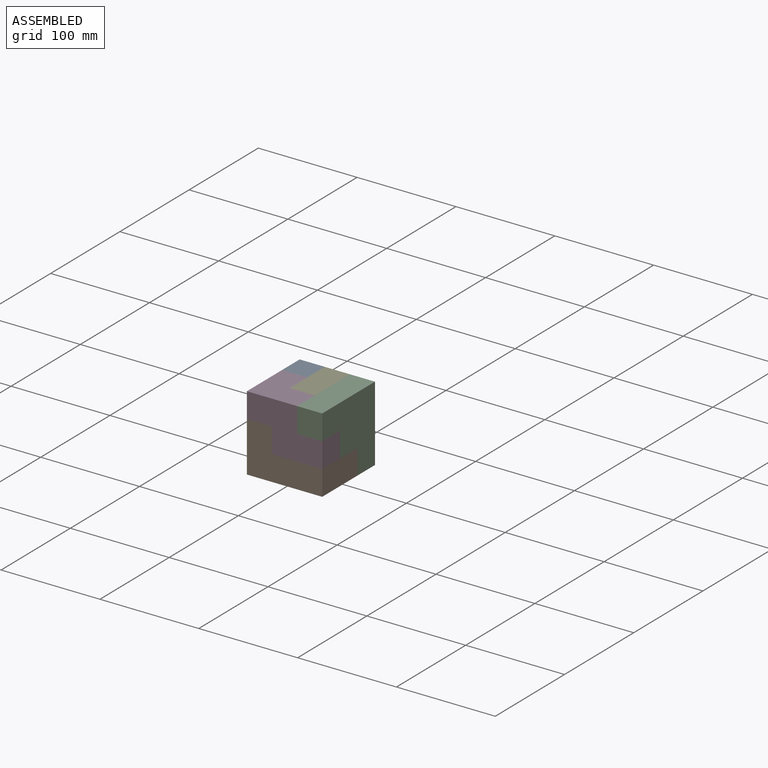
[diagram: assembled view]
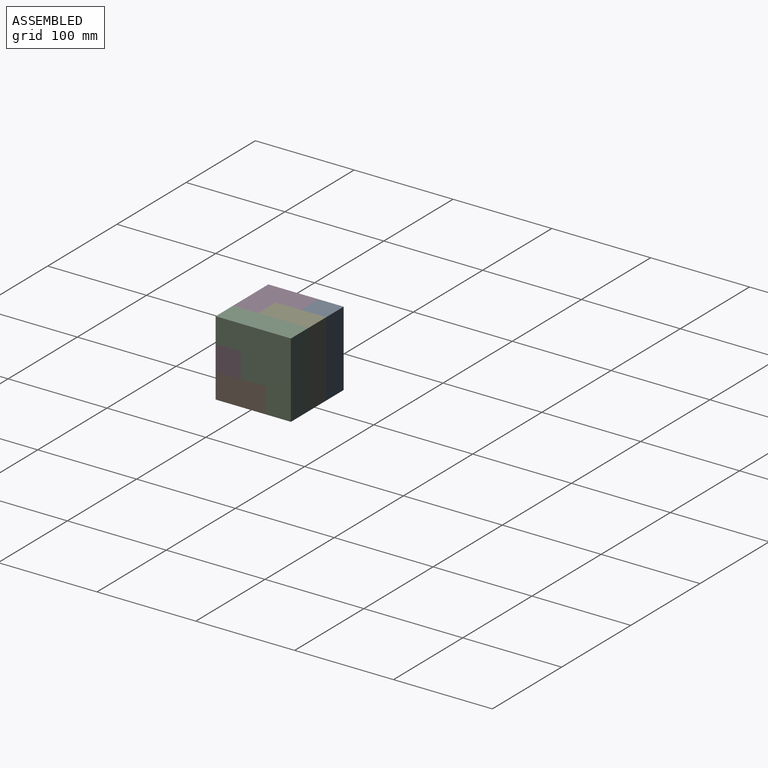
[diagram: assembled view, second angle]
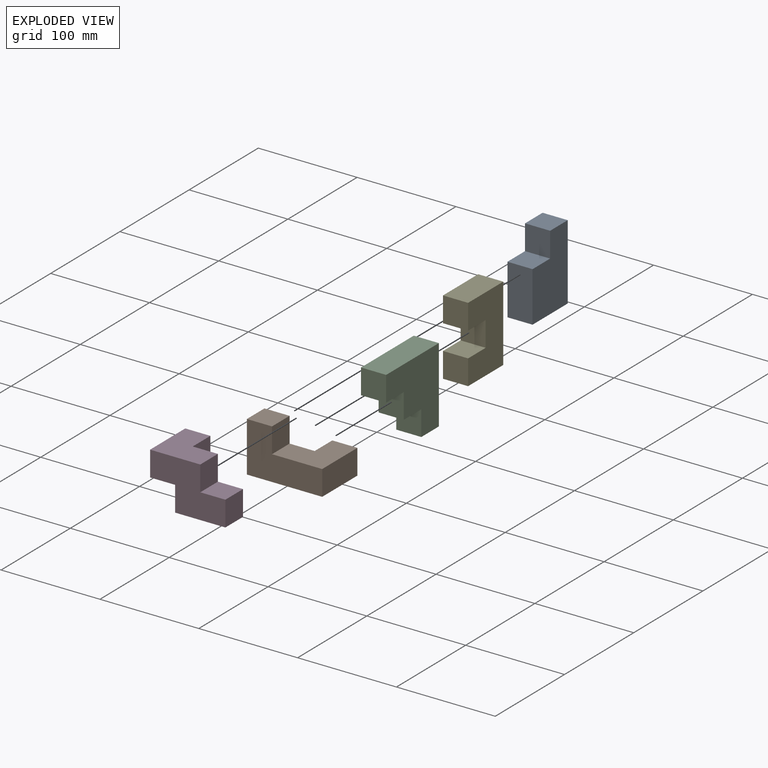
[diagram: exploded view]
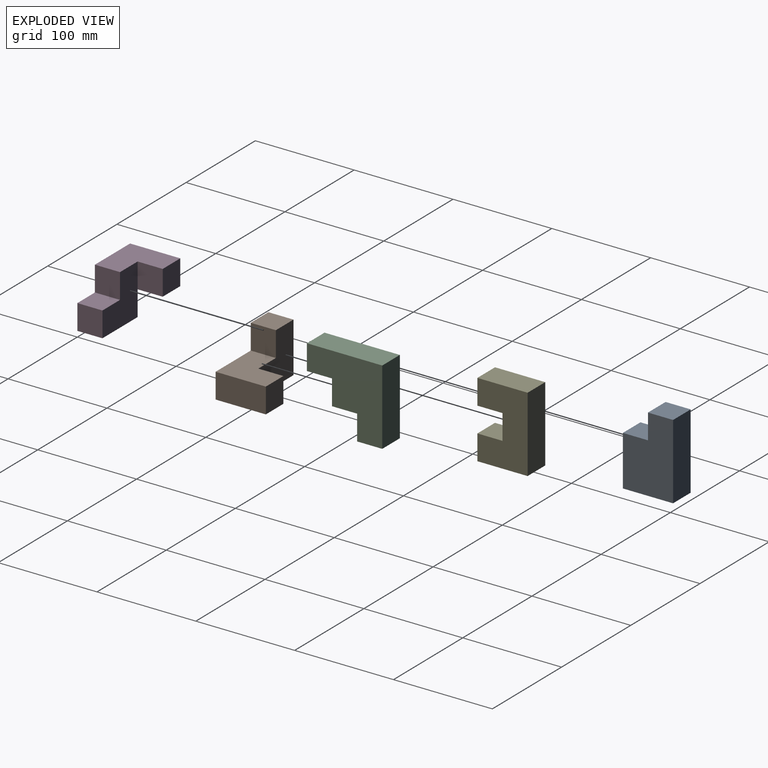
[diagram: exploded view, second angle]
ASSEMBLY  parts=5 mates=15
PART A: 8 faces, bbox 50.8x25.4x76.2 mm
  f0: plane 76.2x25.4mm, normal (-1,0,0), area 1935.5mm2, adj f1,f5,f6,f7
  f1: plane 50.8x25.4mm, normal (0,0,-1), area 1290.3mm2, adj f0,f2,f6,f7
  f2: plane 50.8x25.4mm, normal (1,0,0), area 1290.3mm2, adj f1,f3,f6,f7
  f3: plane 25.4x25.4mm, normal (0,0,1), area 645.2mm2, adj f2,f4,f6,f7
  f4: plane 25.4x25.4mm, normal (1,0,0), area 645.2mm2, adj f3,f5,f6,f7
  f5: plane 25.4x25.4mm, normal (0,0,1), area 645.2mm2, adj f0,f4,f6,f7
  f6: plane 76.2x50.8mm, normal (0,-1,0), area 3225.8mm2, adj f0,f1,f2,f3,f4,f5
  f7: plane 76.2x50.8mm, normal (0,1,0), area 3225.8mm2, adj f0,f1,f2,f3,f4,f5
PART B: 10 faces, bbox 76.2x50.8x50.8 mm
  f0: plane 50.8x25.4mm, normal (-1,0,0), area 1290.3mm2, adj f1,f5,f6,f7
  f1: plane 76.2x50.8mm, normal (0,0,-1), area 2580.6mm2, adj f0,f2,f6,f7,f8,f9
  f2: plane 50.8x25.4mm, normal (1,0,0), area 1290.3mm2, adj f1,f3,f6,f9
  f3: plane 50.8x50.8mm, normal (0,0,1), area 1935.5mm2, adj f2,f4,f6,f7,f8,f9
  f4: plane 25.4x25.4mm, normal (1,0,0), area 645.2mm2, adj f3,f5,f6,f7
  f5: plane 25.4x25.4mm, normal (0,0,1), area 645.2mm2, adj f0,f4,f6,f7
  f6: plane 76.2x50.8mm, normal (0,-1,0), area 2580.6mm2, adj f0,f1,f2,f3,f4,f5
  f7: plane 50.8x50.8mm, normal (0,1,0), area 1935.5mm2, adj f0,f1,f3,f4,f5,f8
  f8: plane 25.4x25.4mm, normal (-1,0,0), area 645.2mm2, adj f1,f3,f7,f9
  f9: plane 25.4x25.4mm, normal (0,1,0), area 645.2mm2, adj f1,f2,f3,f8
PART C: 10 faces, bbox 76.2x25.4x76.2 mm
  f0: plane 25.4x25.4mm, normal (1,0,0), area 645.2mm2, adj f1,f7,f8,f9
  f1: plane 25.4x25.4mm, normal (0,0,-1), area 645.2mm2, adj f0,f2,f8,f9
  f2: plane 25.4x25.4mm, normal (1,0,0), area 645.2mm2, adj f1,f3,f8,f9
  f3: plane 25.4x25.4mm, normal (0,0,-1), area 645.2mm2, adj f2,f4,f8,f9
  f4: plane 25.4x25.4mm, normal (1,0,0), area 645.2mm2, adj f3,f5,f8,f9
  f5: plane 76.2x25.4mm, normal (0,0,1), area 1935.5mm2, adj f4,f6,f8,f9
  f6: plane 76.2x25.4mm, normal (-1,0,0), area 1935.5mm2, adj f5,f7,f8,f9
  f7: plane 25.4x25.4mm, normal (0,0,-1), area 645.2mm2, adj f0,f6,f8,f9
  f8: plane 76.2x76.2mm, normal (0,-1,0), area 3871mm2, adj f0,f1,f2,f3,f4,f5,f6,f7
  f9: plane 76.2x76.2mm, normal (0,1,0), area 3871mm2, adj f0,f1,f2,f3,f4,f5,f6,f7
PART D: 12 faces, bbox 76.2x50.8x50.8 mm
  f0: plane 50.8x50.8mm, normal (0,1,0), area 1935.5mm2, adj f2,f3,f4,f5,f6,f7,f10
  f1: plane 50.8x25.4mm, normal (0,0,-1), area 1290.3mm2, adj f2,f8,f9,f10,f11
  f2: plane 25.4x25.4mm, normal (-1,0,0), area 645.2mm2, adj f0,f1,f3,f9
  f3: plane 50.8x25.4mm, normal (0,0,-1), area 1290.3mm2, adj f0,f2,f4,f9
  f4: plane 25.4x25.4mm, normal (1,0,0), area 645.2mm2, adj f0,f3,f5,f9
  f5: plane 25.4x25.4mm, normal (0,0,1), area 645.2mm2, adj f0,f4,f6,f9
  f6: plane 25.4x25.4mm, normal (1,0,0), area 645.2mm2, adj f0,f5,f7,f9
  f7: plane 50.8x50.8mm, normal (0,0,1), area 1935.5mm2, adj f0,f6,f8,f9,f10,f11
  f8: plane 50.8x25.4mm, normal (-1,0,0), area 1290.3mm2, adj f1,f7,f9,f11
  f9: plane 76.2x50.8mm, normal (0,-1,0), area 2580.6mm2, adj f1,f2,f3,f4,f5,f6,f7,f8
  f10: plane 25.4x25.4mm, normal (1,0,0), area 645.2mm2, adj f0,f1,f7,f11
  f11: plane 25.4x25.4mm, normal (0,1,0), area 645.2mm2, adj f1,f7,f8,f10
PART E: 10 faces, bbox 50.8x25.4x76.2 mm
  f0: plane 50.8x25.4mm, normal (0,0,1), area 1290.3mm2, adj f1,f7,f8,f9
  f1: plane 76.2x25.4mm, normal (-1,0,0), area 1935.5mm2, adj f0,f2,f8,f9
  f2: plane 50.8x25.4mm, normal (0,0,-1), area 1290.3mm2, adj f1,f3,f8,f9
  f3: plane 25.4x25.4mm, normal (1,0,0), area 645.2mm2, adj f2,f4,f8,f9
  f4: plane 25.4x25.4mm, normal (0,0,1), area 645.2mm2, adj f3,f5,f8,f9
  f5: plane 25.4x25.4mm, normal (1,0,0), area 645.2mm2, adj f4,f6,f8,f9
  f6: plane 25.4x25.4mm, normal (0,0,-1), area 645.2mm2, adj f5,f7,f8,f9
  f7: plane 25.4x25.4mm, normal (1,0,0), area 645.2mm2, adj f0,f6,f8,f9
  f8: plane 76.2x50.8mm, normal (0,-1,0), area 3225.8mm2, adj f0,f1,f2,f3,f4,f5,f6,f7
  f9: plane 76.2x50.8mm, normal (0,1,0), area 3225.8mm2, adj f0,f1,f2,f3,f4,f5,f6,f7
PLACE A rot(axis=(0,0,-1),90deg) t=(287.37,-82.52,88.73)mm
PLACE B t=(287.37,-107.92,37.93)mm
PLACE C rot(axis=(0,0,-1),90deg) t=(338.17,-82.52,88.73)mm
PLACE D t=(287.37,-107.92,88.73)mm
PLACE E rot(axis=(0,0,-1),90deg) t=(312.77,-82.52,88.73)mm
MATE planar E.f0 <-> C.f5  axis (0,0,1) through (300.07,-82.52,114.13)mm
MATE planar D.f9 <-> B.f6  axis (0,-1,0) through (287.37,-133.32,114.13)mm
MATE planar D.f3 <-> B.f3  axis (0,0,-1) through (312.77,-120.62,63.33)mm
MATE planar E.f8 <-> A.f7  axis (-1,0,0) through (287.37,-82.52,63.33)mm
MATE planar C.f3 <-> D.f5  axis (0,0,-1) through (325.47,-120.62,88.73)mm
MATE planar C.f2 <-> D.f0  axis (0,-1,0) through (325.47,-107.92,76.03)mm
MATE planar A.f6 <-> B.f0  axis (-1,0,0) through (261.97,-79.98,70.95)mm
MATE planar A.f5 <-> D.f7  axis (0,0,1) through (274.67,-69.82,114.13)mm
MATE planar C.f9 <-> B.f2  axis (1,0,0) through (338.17,-86.75,84.5)mm
MATE planar A.f6 <-> B.f0  axis (-1,0,0) through (261.97,-79.98,70.95)mm
MATE planar E.f7 <-> D.f0  axis (0,-1,0) through (300.07,-107.92,101.43)mm
MATE planar D.f8 <-> B.f0  axis (-1,0,0) through (261.97,-107.92,101.43)mm
MATE planar E.f2 <-> A.f1  axis (0,0,-1) through (300.07,-82.52,37.93)mm
MATE planar A.f2 <-> B.f7  axis (0,-1,0) through (274.67,-107.92,63.33)mm
MATE planar D.f9 <-> B.f6  axis (0,-1,0) through (300.07,-133.32,88.73)mm
